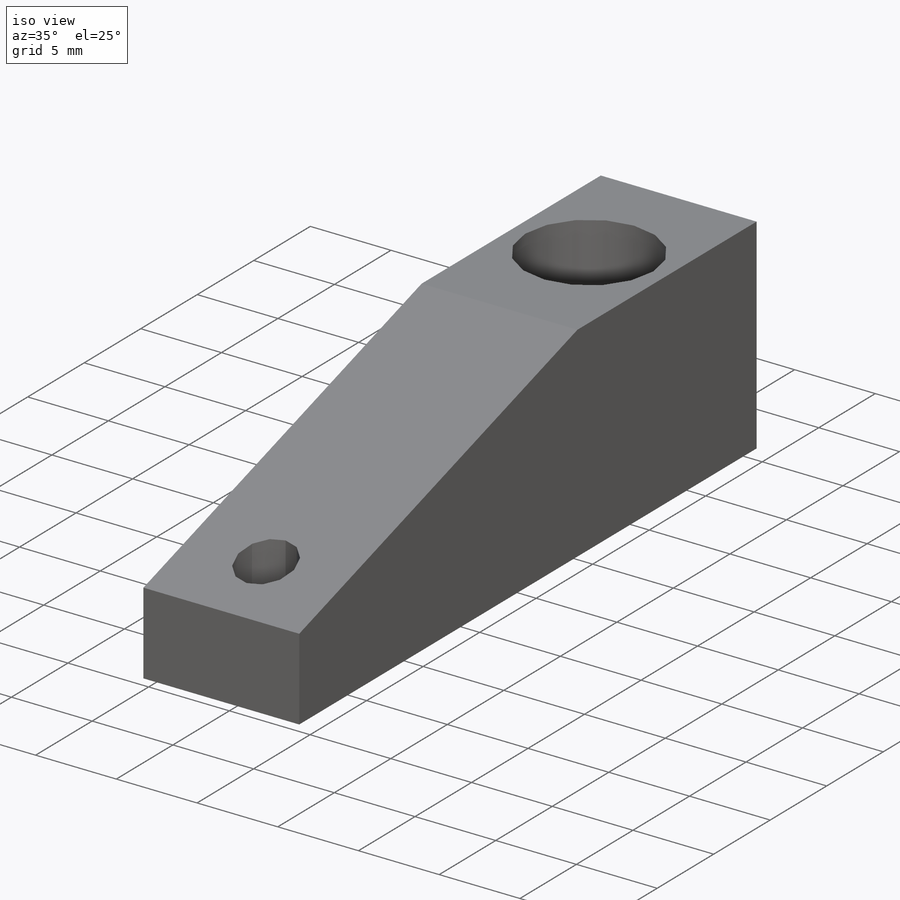
[diagram: iso view]
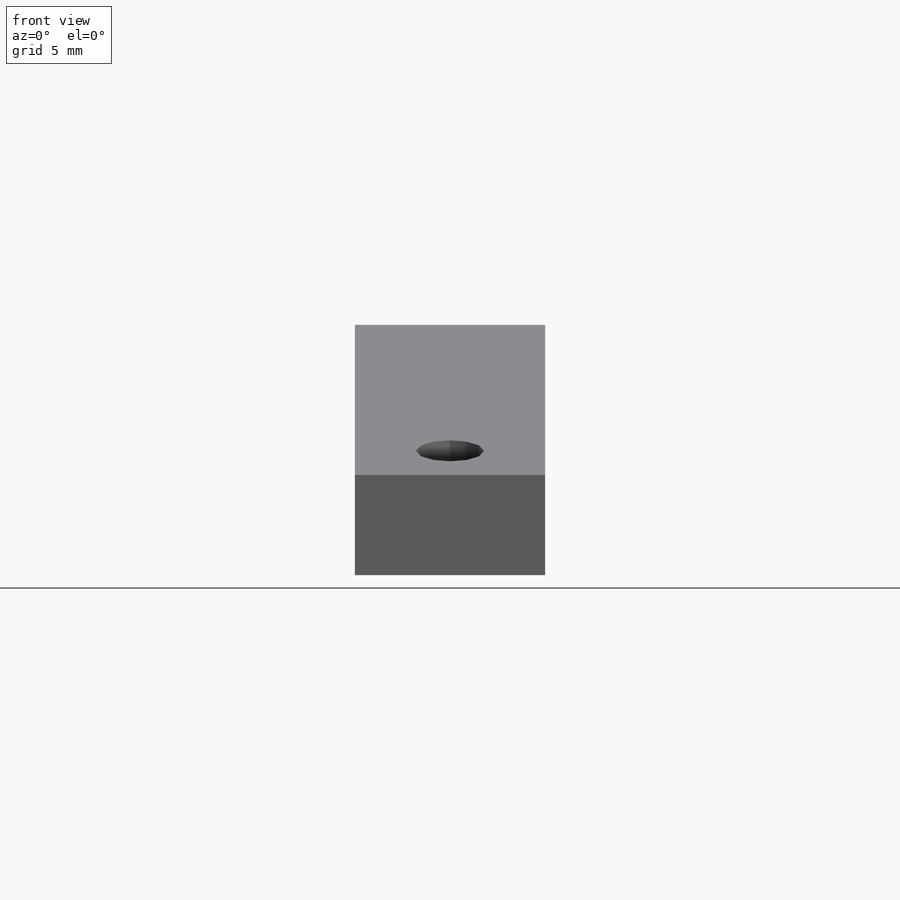
[diagram: front view]
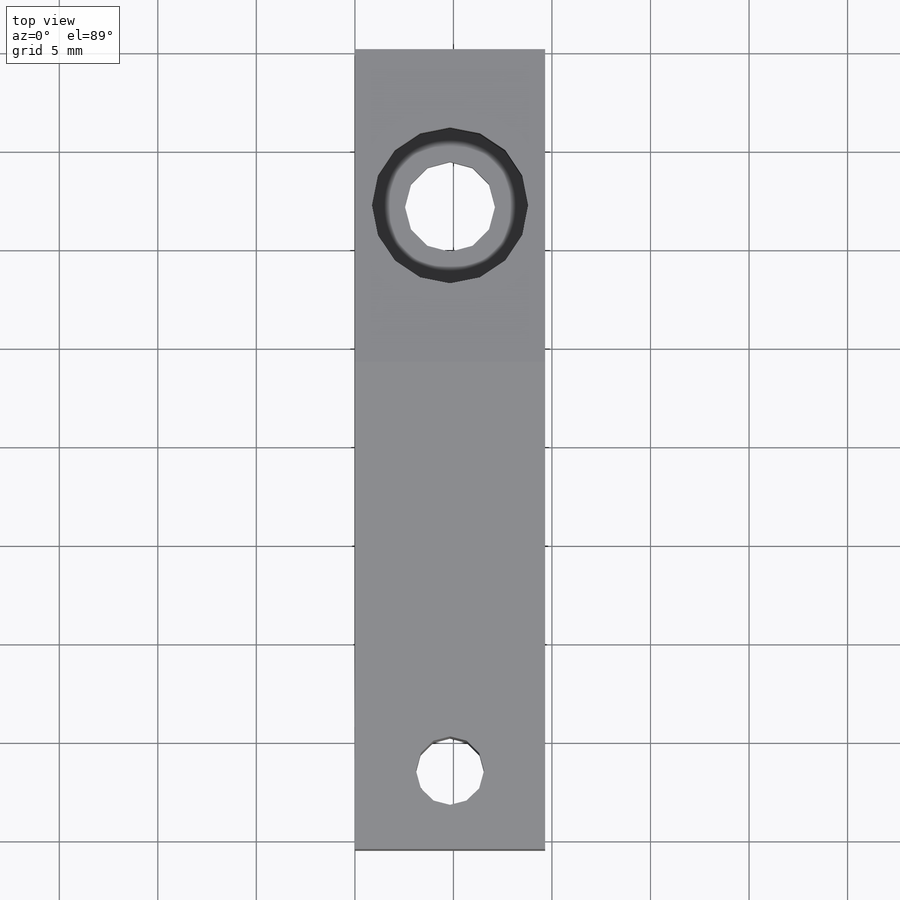
[diagram: top view]
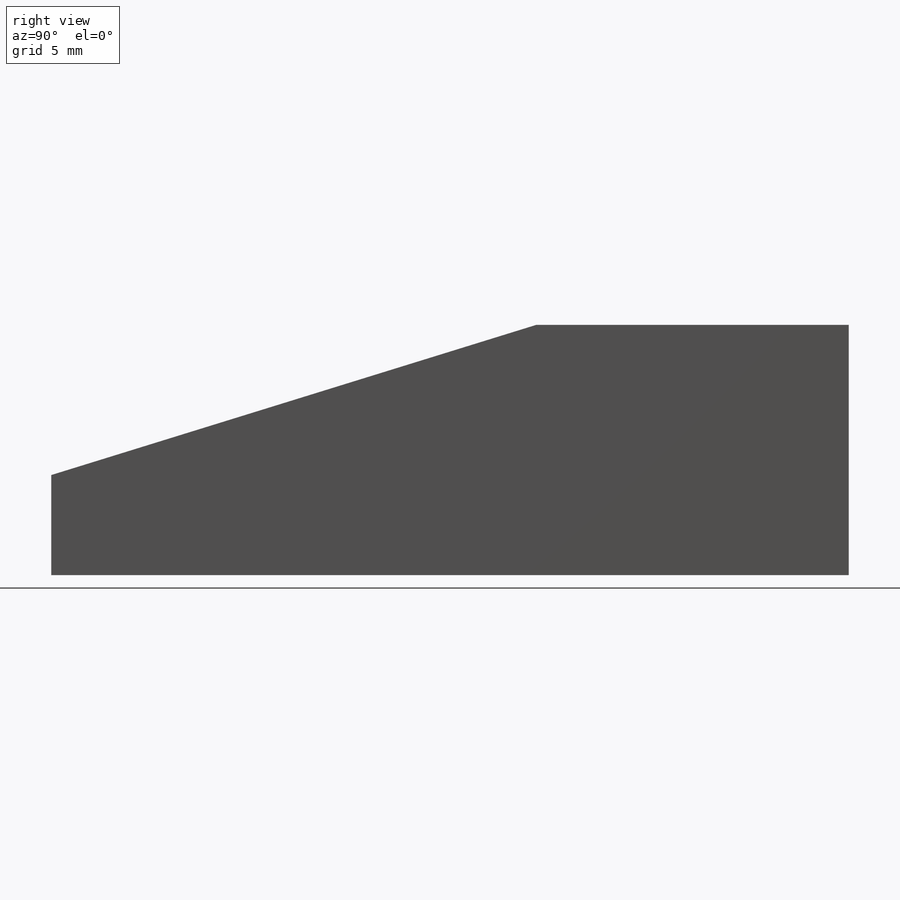
[diagram: right view]
SOLIDWORKS PART (.sldprt)
format: sldprt  version: not decoded by parser v0  size: 178,176 bytes
history: native  units: mm
features: sketch x4, cut_extrude x2, material x1, extrude x1, plane x1, cut_revolve x1, fillet x1 (+13 scaffold rows collapsed)
feature tree (24):
  scaffold x13  (default folders/planes/origin — collapsed)
  material  "Alloy Steel"
  sketch  "Sketch1"  dims[D1=9.652mm D2=40.4622mm]
  extrude  "Extrude1"  Depth=12.7mm
  plane  "Plane1"  Offset=4.826mm
  sketch  "Sketch3"  dims[c1.D1=7.9248mm c1.D2=7.9248mm c1.D3=4.1656mm c1.D4=4.572mm c1.D5=6.6548mm c1.D6=~13.529302mm c2.D6=3.5deg c2.D7=6.223mm]
  cut_revolve  "Cut-Revolve1"  Angle=360deg
  fillet  "Fillet1"  Radius=0.127mm
  sketch  "Sketch4"  dims[D1=7.9248mm D2=5.08mm]
  cut_extrude  "Cut-Extrude1"  [1 undecoded]
  sketch  "Sketch5"  dims[D1=3.4544mm D2=28.575mm]
  cut_extrude  "Cut-Extrude2"  [1 undecoded]
decode coverage: 7 of 9 modeling features carry decoded parameters
note: ~ marks probable driven/reference dimensions
note: 2 parameter values undecoded
note: suppression state not decoded; provenance and decode notes live in map.json
